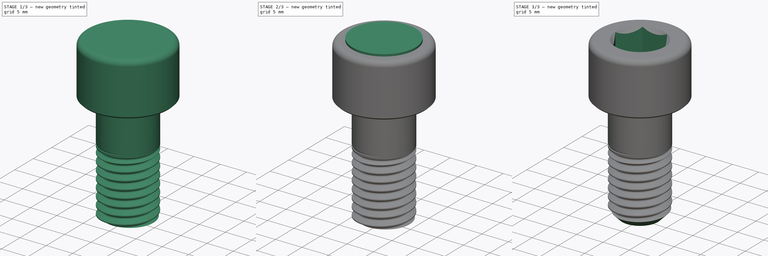
[diagram: build sequence overview — one tinted view per stage of 3, left to right]
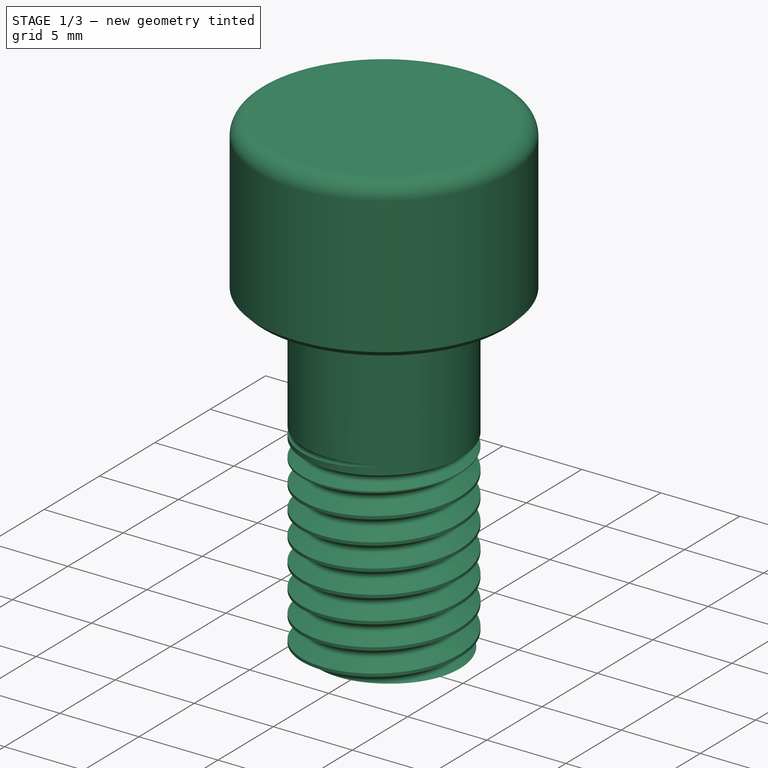
[diagram: stage 1 of 3 — iso view after this stage's code; geometry added in this stage tinted green]
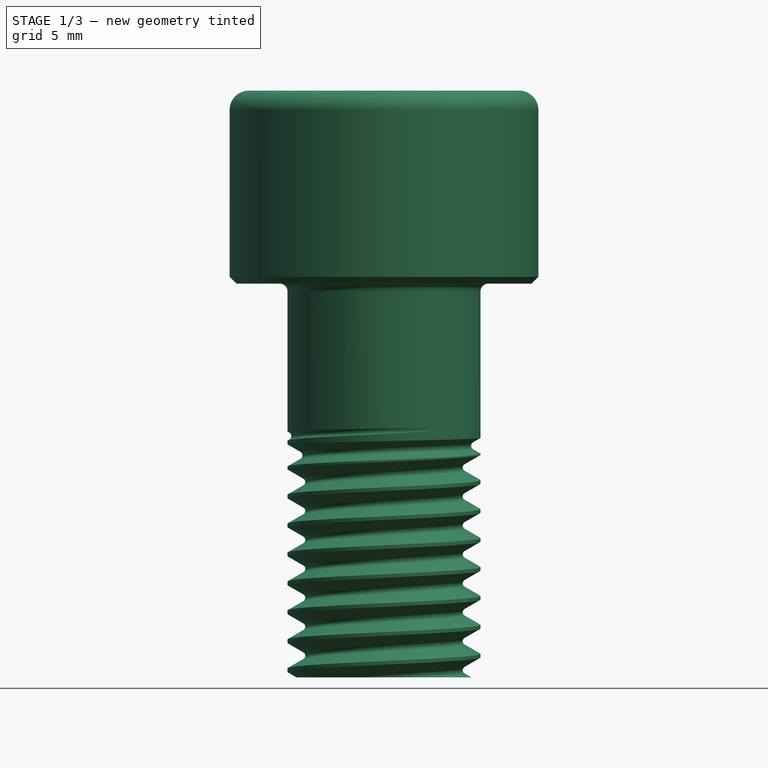
[diagram: stage 1 of 3 — front view after this stage's code; geometry added in this stage tinted green]
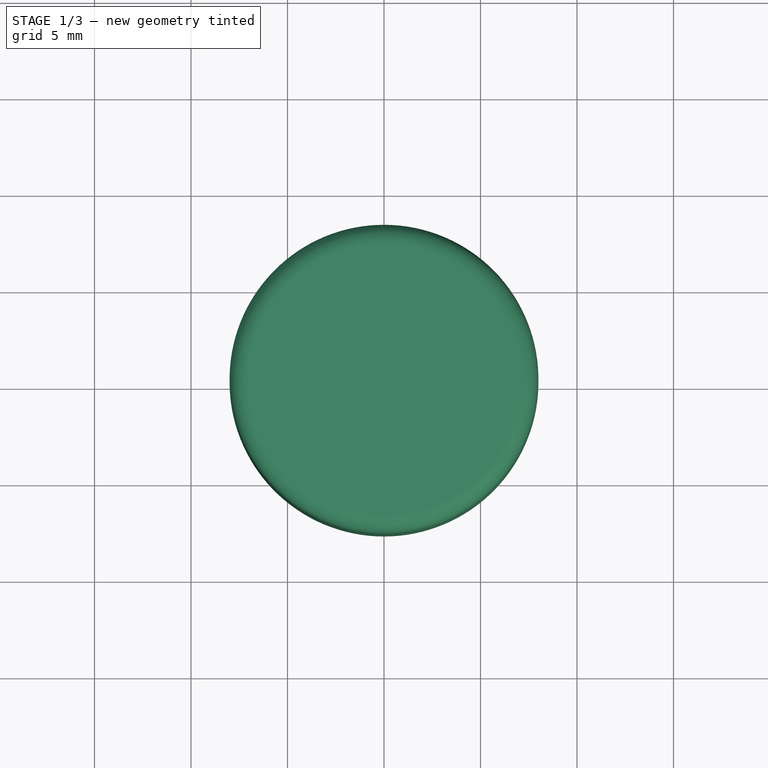
[diagram: stage 1 of 3 — top view after this stage's code; geometry added in this stage tinted green]
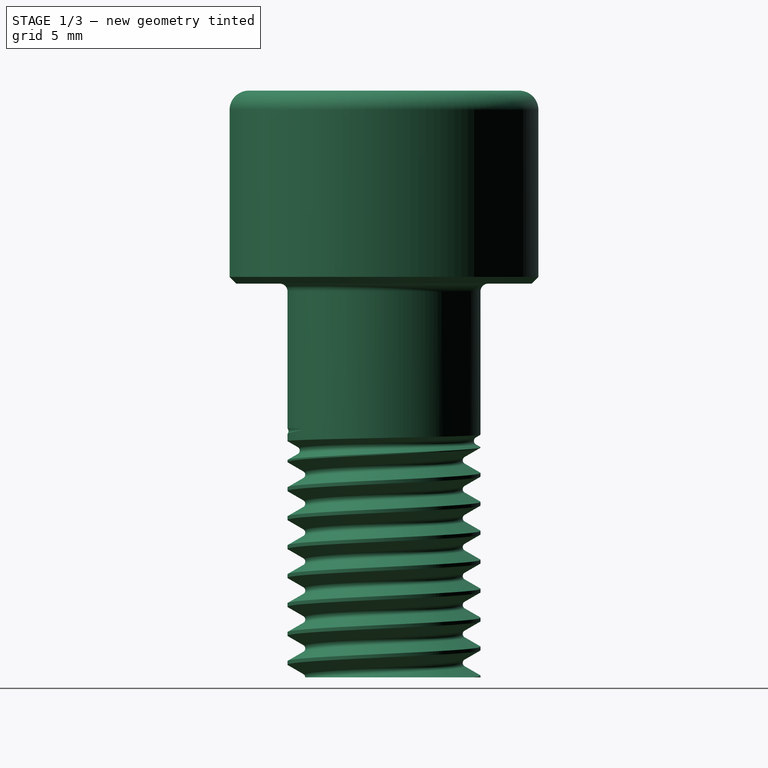
[diagram: stage 1 of 3 — right view after this stage's code; geometry added in this stage tinted green]
FCSTD DOCUMENT  (FreeCAD 0.18R16093 (Git))
Label: Vis M10x20 BTR
License: CreativeCommons Attribution
LicenseURL: http://creativecommons.org/licenses/by/4.0/
objects: Sketcher::SketchObject×7, Part::Helix×2, PartDesign::Revolution×2, PartDesign::Body×2, PartDesign::Groove×2, PartDesign::Pad×1, PartDesign::Pocket×1, Part::MultiFuse×1, PartDesign::ShapeBinder×1, PartDesign::SubtractivePipe×1, PartDesign::Boolean×1, Part::Feature×1
note: 29 computed .brp shape members not serialized (recipe doc carries the construction recipe); baked Part::Feature solids carry a one-line shape summary decoded from their .brp

FEATURE [Sketcher::SketchObject] Sketch  label="dessin cercle D=10mm plan XY"
  MapMode = 5
  Support = -> [XY_Plane]
  sketch-geometry (1):
    g0: Circle CenterX=0 CenterY=0 CenterZ=0 NormalX=0 NormalY=0 NormalZ=1 AngleXU=0 Radius=5
  constraints (2):
    c: Coincident(g0,g-1)
    c: Radius(g0) = 5
FEATURE [PartDesign::Pad] Pad  label="cylindre D=10mm x H=20mm"
  Length = 20
  Length2 = 100
  Profile = -> Sketch
  Type = 0
FEATURE [PartDesign::Body] Body001  label="empreinte six pans"
  Group = -> [Sketch005,Revolution001,Sketch006,Pocket]
  Origin = -> Origin001
  Tip = -> Pocket
FEATURE [Part::MultiFuse] Fusion  label="Fusion des hélices"
  Shapes = -> [Helix,Helix001]
FEATURE [PartDesign::ShapeBinder] ShapeBinder  label="reprise de fusion des hélices en forme liée"
  Support = -> [Fusion]
  TraceSupport = false
FEATURE [PartDesign::SubtractivePipe] SubtractivePipe  label="filetage complet"
  AuxilleryCurvelinear = true
  AuxillerySpineTangent = false
  BaseFeature = -> Pad
  Binormal = (0,0,0)
  Mode = 2
  Profile = -> Sketch002
  Spine = -> ShapeBinder
  SpineTangent = false
  Transformation = 0
  Transition = 0
FEATURE [PartDesign::Revolution] Revolution  label="tête brute"
  Angle = 360
  Axis = (0,-2e-16,1)
  Base = (0,0,0)
  BaseFeature = -> SubtractivePipe
  Profile = -> Sketch004
  ReferenceAxis = -> Sketch004 [V_Axis]
  Reversed = true
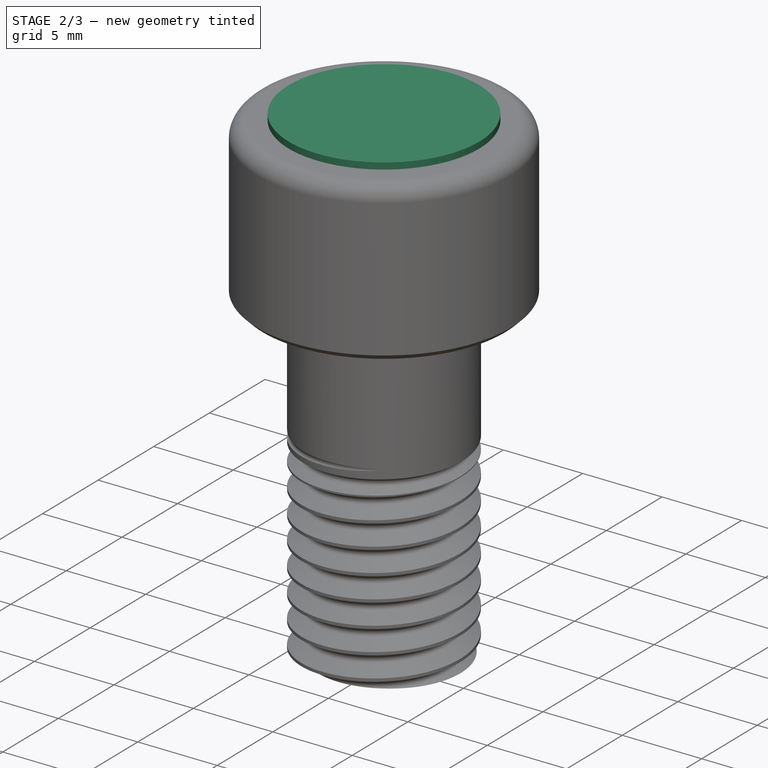
[diagram: stage 2 of 3 — iso view after this stage's code; geometry added in this stage tinted green]
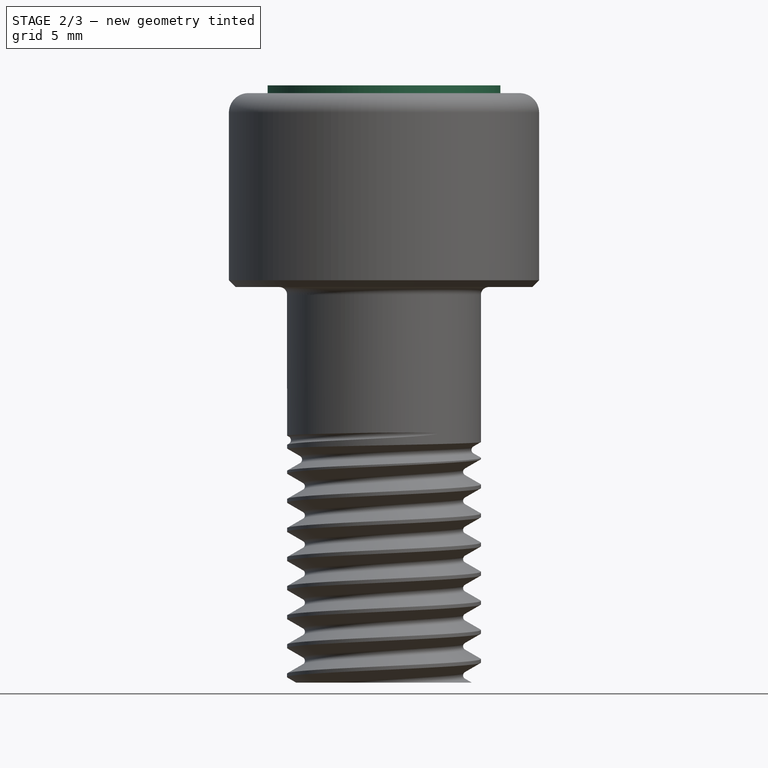
[diagram: stage 2 of 3 — front view after this stage's code; geometry added in this stage tinted green]
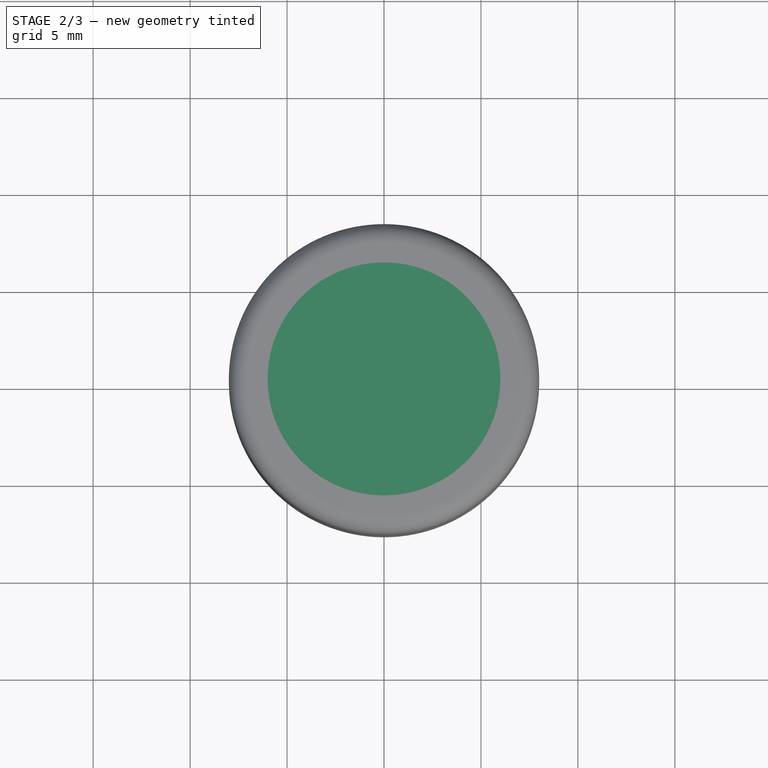
[diagram: stage 2 of 3 — top view after this stage's code; geometry added in this stage tinted green]
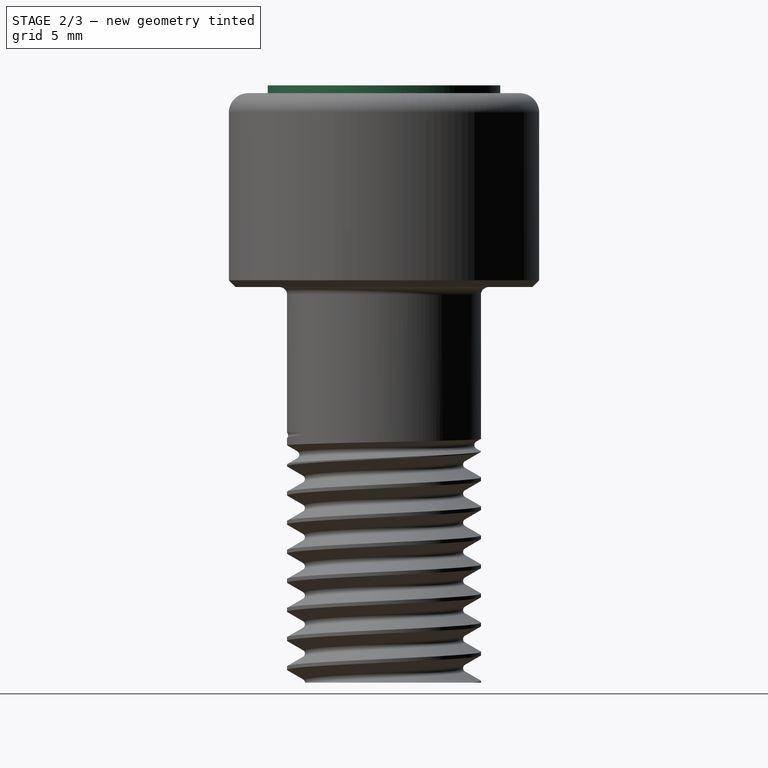
[diagram: stage 2 of 3 — right view after this stage's code; geometry added in this stage tinted green]
FEATURE [Part::Helix] Helix  label="Hélice pas 1,5mm r=5mm H=12mm 90° sur Z"
  Angle = 0
  AttacherType = Attacher::AttachEngine3D
  Height = 12
  LocalCoord = 0
  Pitch = 1.5
  Placement = pos=(0,0,0) rot=(0,0,1;1.5708rad)
  Radius = 5
  Style = 1
FEATURE [Part::Helix] Helix001  label="Hélice de sortie"
  Angle = 30
  AttacherType = Attacher::AttachEngine3D
  Height = 2
  LocalCoord = 0
  Pitch = 1
  Placement = pos=(0,0,12) rot=(0,0,1;1.5708rad)
  Radius = 5
  Style = 1
FEATURE [Sketcher::SketchObject] Sketch002  label="dessin filetage plan YZ"
  MapMode = 5
  Placement = pos=(0,0,0) rot=(0.57735,0.57735,0.57735;2.0944rad)
  Support = -> [YZ_Plane]
  sketch-geometry (7):
    g0: LineSegment [constr] StartX=5.16204 StartY=0 StartZ=0 EndX=3.863 EndY=-0.75 EndZ=0
    g1: LineSegment [constr] StartX=3.863 StartY=-0.75 StartZ=0 EndX=5.16204 EndY=-1.5 EndZ=0
    g2: LineSegment [constr] StartX=5.16204 StartY=-1.5 StartZ=0 EndX=5.16204 EndY=0 EndZ=0
    g3: LineSegment StartX=5.01 StartY=-0.0877792 StartZ=0 EndX=4.188 EndY=-0.562361 EndZ=0
    g4: LineSegment StartX=5.01 StartY=-1.41222 StartZ=0 EndX=4.188 EndY=-0.937639 EndZ=0
    g5: ArcOfCircle CenterX=4.29633 CenterY=-0.75 CenterZ=0 NormalX=0 NormalY=0 NormalZ=1 AngleXU=0 Radius=0.216667 StartAngle=2.0944 EndAngle=4.18879
    g6: LineSegment StartX=5.01 StartY=-0.0877792 StartZ=0 EndX=5.01 EndY=-1.41222 EndZ=0
  constraints (20):
    c: Coincident(g0,g1)
    c: Coincident(g1,g2)
    c: Coincident(g2,g0)
    c: Vertical(g2)
    c: Equal(g1,g0)
    c: DistanceY(g2,g2) = 1.5
    c: Angle(g1,g0) = 1.0472
    c: PointOnObject(g3,g0)
    c: PointOnObject(g4,g1)
    c: Tangent(g3,g5) = -1.5708
    c: PointOnObject(g3,g0)
    c: Tangent(g5,g4) = 1.5708
    c: PointOnObject(g4,g1)
    c: Coincident(g6,g3)
    c: Coincident(g6,g4)
    c: Vertical(g6)
    c: DistanceX(g4) = 4.188
    c: DistanceX(g4) = 5.01
    c: DistanceX(g0,g4) = 0.325
    c: PointOnObject(g0,g-1)
FEATURE [Sketcher::SketchObject] Sketch003  label="dessin chanfrein"
  MapMode = 5
  Placement = pos=(0,0,0) rot=(0.57735,0.57735,0.57735;2.0944rad)
  Support = -> [YZ_Plane]
  sketch-geometry (6):
    g0: LineSegment StartX=5 StartY=1.59354 StartZ=0 EndX=3.40646 EndY=0 EndZ=0
    g1: LineSegment StartX=3.40646 StartY=0 StartZ=0 EndX=5 EndY=0 EndZ=0
    g2: LineSegment StartX=5 StartY=0 StartZ=0 EndX=5 EndY=1.59354 EndZ=0
    g3: LineSegment StartX=4e-16 StartY=-4.88e-14 StartZ=0 EndX=4e-16 EndY=0.587219 EndZ=0
    g4: LineSegment StartX=4e-16 StartY=-4.88e-14 StartZ=0 EndX=2.80646 EndY=-4.88e-14 EndZ=0
    g5: ArcOfCircle CenterX=0 CenterY=-6.41278 CenterZ=0 NormalX=0 NormalY=0 NormalZ=1 AngleXU=0 Radius=7 StartAngle=1.15827 EndAngle=1.5708
  constraints (16):
    c: Coincident(g0,g1)
    c: Horizontal(g1)
    c: Coincident(g1,g2)
    c: Coincident(g2,g0)
    c: Vertical(g2)
    c: Angle(g1,g0) = 0.785398
    c: PointOnObject(g1,g-1)
    c: Coincident(g3,g-1)
    c: Coincident(g4,g3)
    c: Horizontal(g4)
    c: Vertical(g3)
    c: PointOnObject(g5,g-2)
    c: Coincident(g5,g3)
    c: Coincident(g5,g4)
    c: DistanceX(g4,g0) = 0.6
    c: Radius(g5) = 7
FEATURE [Sketcher::SketchObject] Sketch004  label="dessin profil tête"
  AttachmentOffset = pos=(0,0,0) rot=(0,1,0;1.5708rad)
  MapMode = 5
  Placement = pos=(0,0,0) rot=(0.57735,0.57735,0.57735;2.0944rad)
  Support = -> [XZ_Plane]
  sketch-geometry (8):
    g0: LineSegment StartX=0 StartY=20 StartZ=0 EndX=5 EndY=20 EndZ=0
    g1: ArcOfCircle CenterX=5.4 CenterY=20 CenterZ=0 NormalX=0 NormalY=0 NormalZ=1 AngleXU=0 Radius=0.4 StartAngle=1.5708 EndAngle=3.14159
    g2: LineSegment StartX=5.4 StartY=20.4 StartZ=0 EndX=7.65 EndY=20.4 EndZ=0
    g3: LineSegment StartX=7.65 StartY=20.4 StartZ=0 EndX=8 EndY=20.75 EndZ=0
    g4: LineSegment StartX=8 StartY=20.75 StartZ=0 EndX=8 EndY=29.4 EndZ=0
    g5: ArcOfCircle CenterX=7 CenterY=29.4 CenterZ=0 NormalX=0 NormalY=0 NormalZ=1 AngleXU=0 Radius=1 StartAngle=1.7e-15 EndAngle=1.5708
    g6: LineSegment StartX=7 StartY=30.4 StartZ=0 EndX=0 EndY=30.4 EndZ=0
    g7: LineSegment StartX=0 StartY=30.4 StartZ=0 EndX=0 EndY=20 EndZ=0
  constraints (21):
    c: PointOnObject(g0,g-2)
    c: Horizontal(g0)
    c: Perpendicular(g0,g1) = 4.71239
    c: Tangent(g1,g2) = 1.5708
    c: Coincident(g2,g3)
    c: Coincident(g3,g4)
    c: Vertical(g4)
    c: Tangent(g4,g5) = -1.5708
    c: Tangent(g5,g6) = -1.5708
    c: Coincident(g6,g7)
    c: Vertical(g7)
    c: Coincident(g7,g0)
    c: Horizontal(g6)
    c: Horizontal(g2)
    c: Radius(g1) = 0.4
    c: Angle(g3,g2) = 2.35619
    c: DistanceX(g3) = 8
    c: DistanceY(g2,g3) = 0.35
    c: DistanceY(g7,g7) = 10.4
    c: Radius(g5) = 1
    c: DistanceY(g0) = 20
FEATURE [Sketcher::SketchObject] Sketch005  label="dessin du fond conique"
  MapMode = 5
  Placement = pos=(0,0,0) rot=(1,0,0;1.5708rad)
  Support = -> [XZ_Plane001]
  sketch-geometry (5):
    g0: ArcOfCircle CenterX=0 CenterY=25.1 CenterZ=0 NormalX=0 NormalY=0 NormalZ=1 AngleXU=0 Radius=2.3 StartAngle=4.71239 EndAngle=4.9989
    g1: LineSegment StartX=0.65 StartY=22.8938 StartZ=0 EndX=6 EndY=25.9826 EndZ=0
    g2: LineSegment StartX=6 StartY=25.9826 StartZ=0 EndX=6 EndY=30.8 EndZ=0
    g3: LineSegment StartX=6 StartY=30.8 StartZ=0 EndX=0 EndY=30.8 EndZ=0
    g4: LineSegment StartX=-4e-16 StartY=30.8 StartZ=0 EndX=-4e-16 EndY=22.8 EndZ=0
  constraints (16):
    c: PointOnObject(g0,g-2)
    c: Coincident(g1,g0)
    c: Coincident(g2,g1)
    c: Vertical(g2)
    c: Coincident(g3,g2)
    c: PointOnObject(g3,g-2)
    c: Horizontal(g3)
    c: Coincident(g4,g3)
    c: Coincident(g4,g0)
    c: Vertical(g4)
    c: Radius(g0) = 2.3
    c: DistanceY(g0) = 22.8
    c: DistanceX(g0) = 0.65
    c: Angle(g1,g4) = 1.0472
    c: DistanceX(g3,g3) = 6
    c: DistanceY(g4,g4) = 8
FEATURE [PartDesign::Revolution] Revolution001  label="cylindre et fond conique"
  Angle = 360
  Axis = (0,2e-16,1)
  Base = (0,0,0)
  Placement = pos=(0,0,0) rot=(1,0,0;1.5708rad)
  Profile = -> Sketch005
  ReferenceAxis = -> Sketch005 [V_Axis]
  Reversed = true
FEATURE [Sketcher::SketchObject] Sketch007  label="dessin alésage supérieur de tête"
  MapMode = 5
  Placement = pos=(0,0,0) rot=(0.57735,0.57735,0.57735;2.0944rad)
  Support = -> [YZ_Plane]
  sketch-geometry (3):
    g0: ArcOfCircle CenterX=0 CenterY=34.2693 CenterZ=0 NormalX=0 NormalY=0 NormalZ=1 AngleXU=0 Radius=6.06931 StartAngle=4.71239 EndAngle=5.59191
    g1: LineSegment StartX=-1.1e-15 StartY=28.2 StartZ=0 EndX=-1.1e-15 EndY=30.4 EndZ=0
    g2: LineSegment StartX=-1.1e-15 StartY=30.4 StartZ=0 EndX=4.676 EndY=30.4 EndZ=0
  constraints (10):
    c: PointOnObject(g0,g-2)
    c: PointOnObject(g0,g-2)
    c: Coincident(g1,g0)
    c: Coincident(g2,g1)
    c: Coincident(g2,g0)
    c: Horizontal(g2)
    c: Vertical(g1)
    c: DistanceY(g0) = 28.2
    c: DistanceX(g2,g2) = 4.676
    c: DistanceY(g1) = 30.4
FEATURE [PartDesign::Groove] Groove  label="alésage supérieur de la tête"
  Angle = 360
  Axis = (-2e-16,3e-16,1)
  Base = (0,0,0)
  BaseFeature = -> Revolution
  Profile = -> Sketch007
  ReferenceAxis = -> Sketch007 [V_Axis]
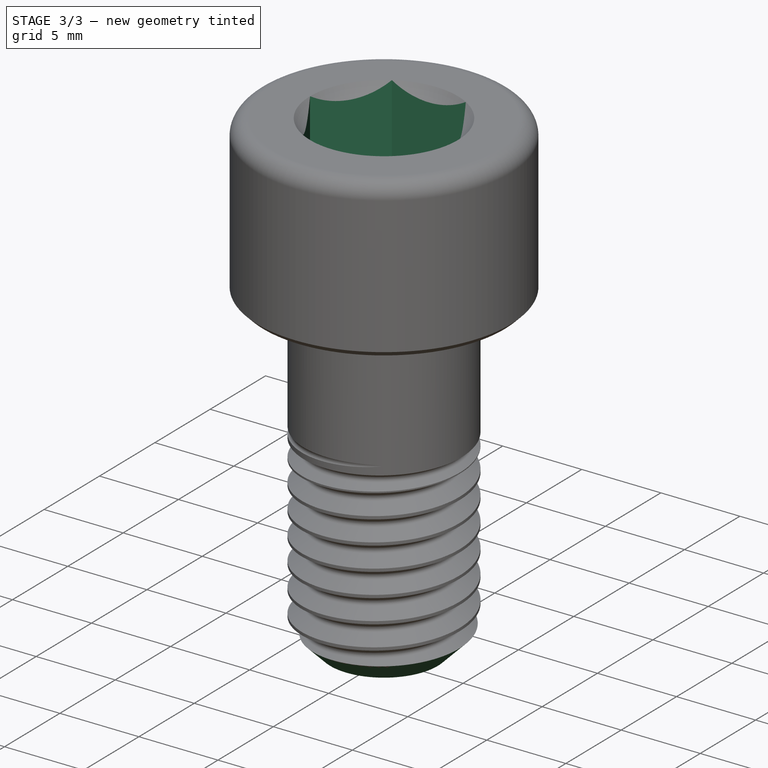
[diagram: stage 3 of 3 — iso view after this stage's code; geometry added in this stage tinted green]
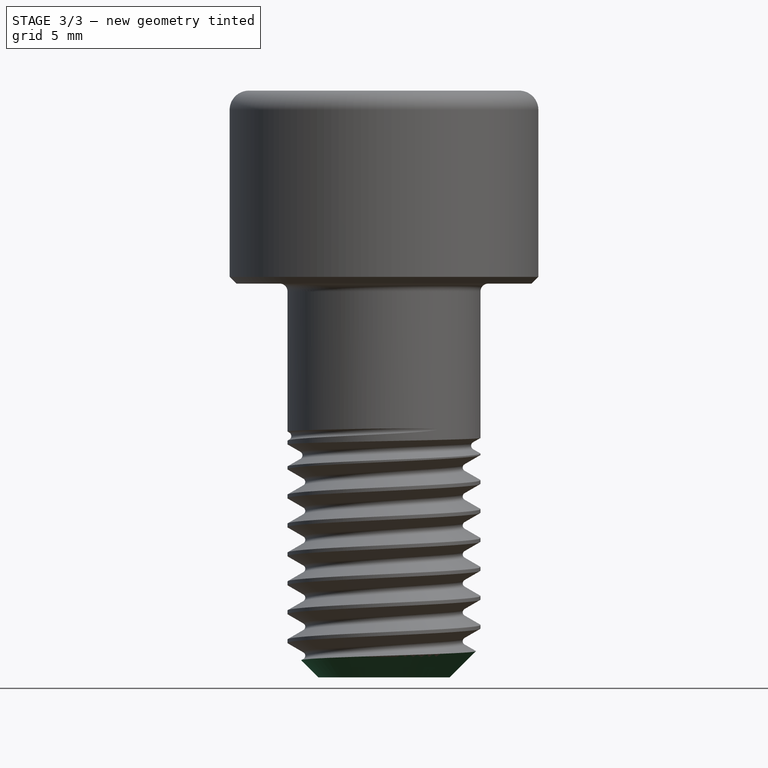
[diagram: stage 3 of 3 — front view after this stage's code; geometry added in this stage tinted green]
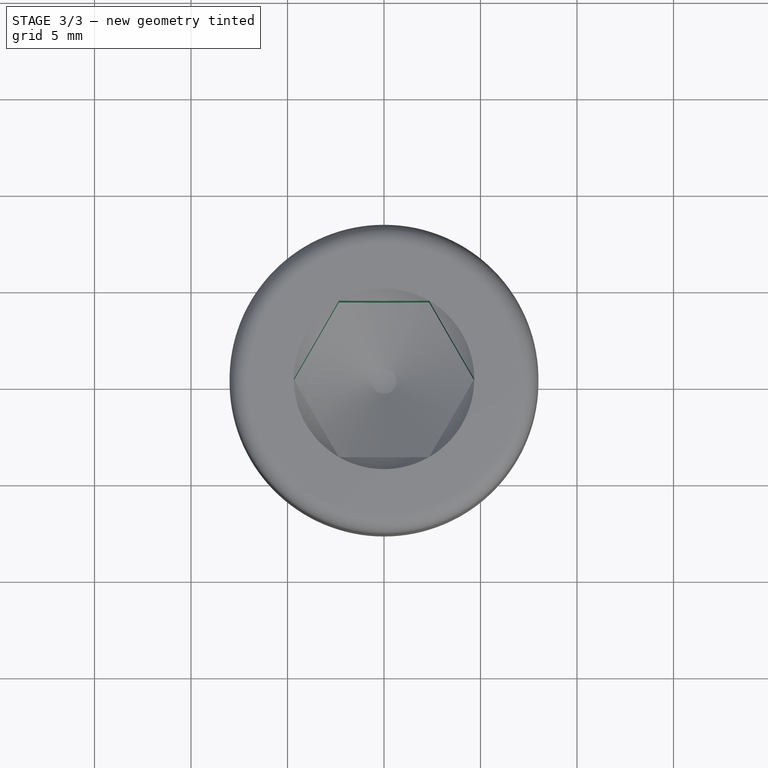
[diagram: stage 3 of 3 — top view after this stage's code; geometry added in this stage tinted green]
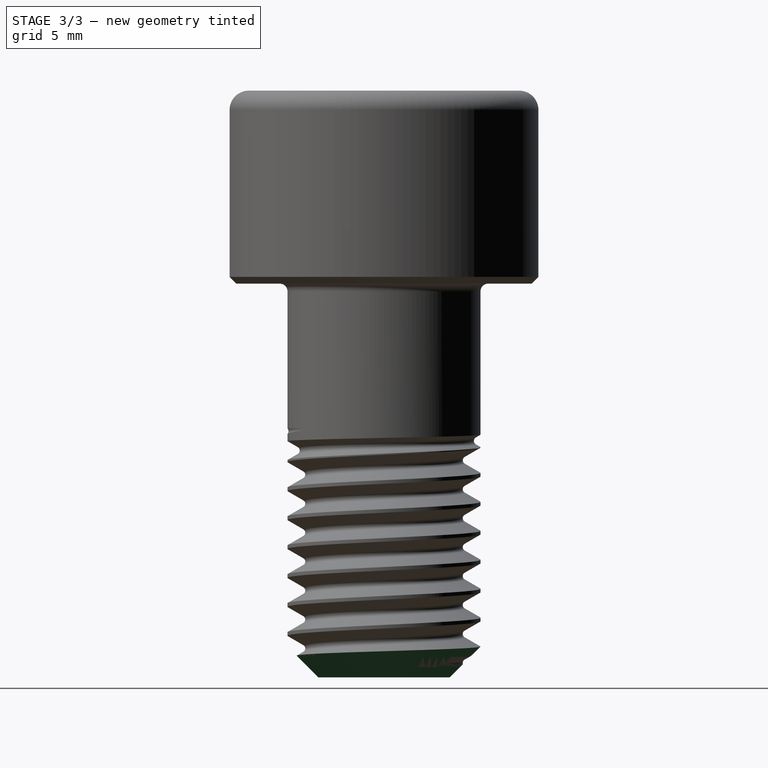
[diagram: stage 3 of 3 — right view after this stage's code; geometry added in this stage tinted green]
FEATURE [Sketcher::SketchObject] Sketch006  label="dessin des six pans"
  MapMode = 5
  Placement = pos=(0,2.04e-14,30.8) rot=(0,0,1;3.14159rad)
  Support = -> [Revolution001]
  sketch-geometry (11):
    g0: LineSegment StartX=-4.67654 StartY=0 StartZ=0 EndX=-2.33827 EndY=-4.05 EndZ=0
    g1: LineSegment StartX=-2.33827 StartY=-4.05 StartZ=0 EndX=2.33827 EndY=-4.05 EndZ=0
    g2: LineSegment StartX=2.33827 StartY=-4.05 StartZ=0 EndX=4.67654 EndY=0 EndZ=0
    g3: LineSegment StartX=4.67654 StartY=0 StartZ=0 EndX=2.33827 EndY=4.05 EndZ=0
    g4: LineSegment StartX=2.33827 StartY=4.05 StartZ=0 EndX=-2.33827 EndY=4.05 EndZ=0
    g5: LineSegment StartX=-2.33827 StartY=4.05 StartZ=0 EndX=-4.67654 EndY=0 EndZ=0
    g6: Circle [constr] CenterX=0 CenterY=0 CenterZ=0 NormalX=0 NormalY=0 NormalZ=1 AngleXU=0 Radius=4.67654
    g7: LineSegment StartX=-6.5 StartY=6.5 StartZ=0 EndX=6.5 EndY=6.5 EndZ=0
    g8: LineSegment StartX=6.5 StartY=6.5 StartZ=0 EndX=6.5 EndY=-6.5 EndZ=0
    g9: LineSegment StartX=6.5 StartY=-6.5 StartZ=0 EndX=-6.5 EndY=-6.5 EndZ=0
    g10: LineSegment StartX=-6.5 StartY=-6.5 StartZ=0 EndX=-6.5 EndY=6.5 EndZ=0
  constraints (27):
    c: Coincident(g0,g1)
    c: Coincident(g1,g2)
    c: Coincident(g2,g3)
    c: Coincident(g3,g4)
    c: Coincident(g4,g5)
    c: Coincident(g5,g0)
    c: Equal(g0, g1-g5) x5
    c: PointOnObject(g0,g6)
    c: PointOnObject(g1,g6)
    c: PointOnObject(g2,g6)
    c: PointOnObject(g3,g6)
    c: PointOnObject(g4,g6)
    c: PointOnObject(g5,g6)
    c: Coincident(g6,g-1)
    c: PointOnObject(g5,g-1)
    c: DistanceY(g1,g3) = 8.1
    c: Coincident(g7,g8)
    c: Coincident(g8,g9)
    c: Coincident(g9,g10)
    c: Coincident(g10,g7)
    c: Horizontal(g7)
    c: Horizontal(g9)
    c: Vertical(g8)
    c: Vertical(g10)
    c: Symmetric(g7,g9,g-1)
    c: Equal(g7,g8)
    c: DistanceX(g7,g7) = 13
FEATURE [PartDesign::Pocket] Pocket  label="forme hexagonale"
  BaseFeature = -> Revolution001
  Length = 5
  Length2 = 100
  Placement = pos=(0,0,0) rot=(1,0,0;1.5708rad)
  Profile = -> Sketch006
  Type = 1
FEATURE [PartDesign::Boolean] Boolean  label="soustraction booléenne de l'empreinte"
  BaseFeature = -> Groove
  Group = -> [Body001]
  Type = 1
FEATURE [PartDesign::Groove] Groove001  label="chanfrein et creux terminal"
  Angle = 360
  Axis = (-3e-16,3e-16,1)
  Base = (0,0,0)
  BaseFeature = -> Boolean
  Profile = -> Sketch003
  ReferenceAxis = -> Z_Axis
FEATURE [PartDesign::Body] Body  label="Vis M10 x 20 BTR"
  Group = -> [Sketch,Pad,Sketch002,Sketch003,Sketch004,ShapeBinder,SubtractivePipe,Revolution,Sketch007,Groove,Boolean,Groove001]
  Origin = -> Origin
  Tip = -> Groove001
FEATURE [Part::Feature] Slice_child0001  label="coupe"
  Placement = pos=(13.9545,13.8301,0) rot=(0,0,-1;1.0472rad)
  shape: bbox 17.32 x 13.84 x 30.4 mm, 89 faces (baked)
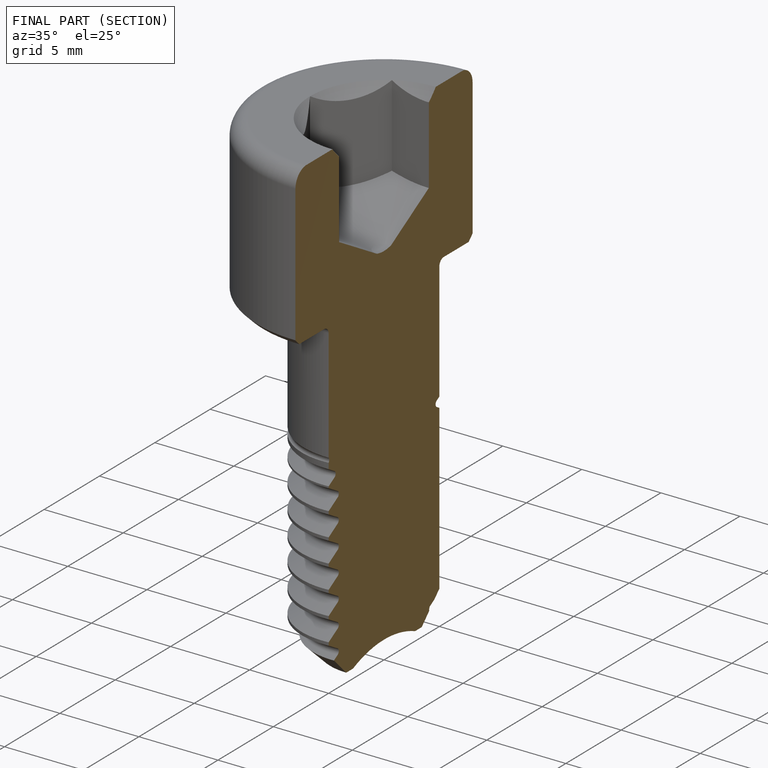
[diagram: finished part — half-section view (interior)]
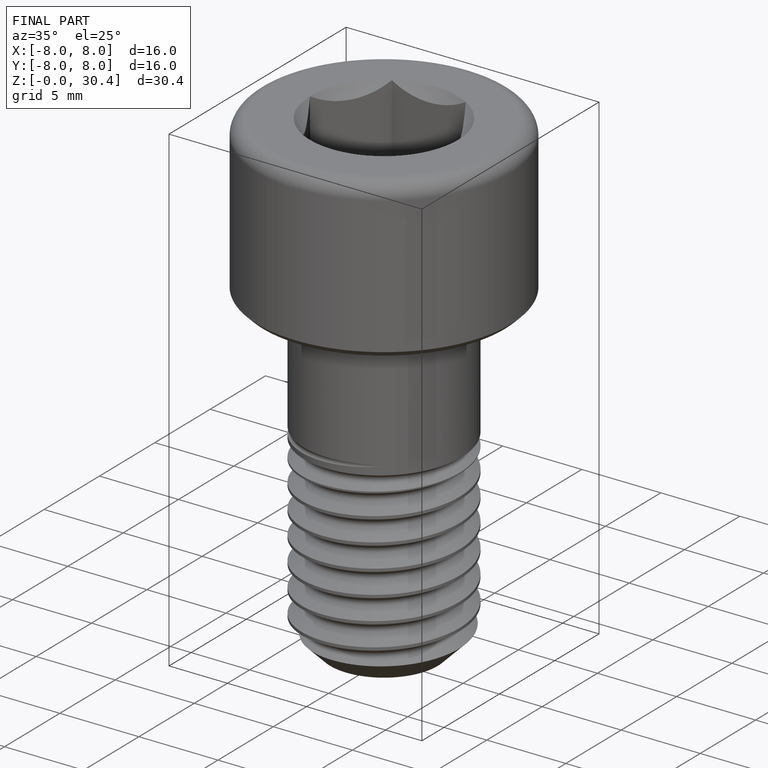
[diagram: finished part — iso view with bounding-box wireframe]
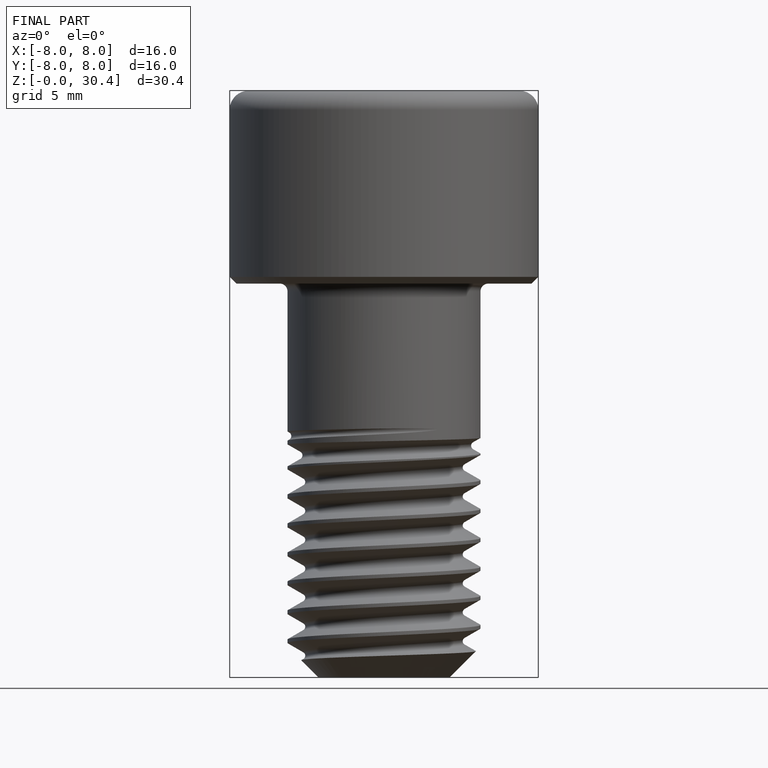
[diagram: finished part — front view with bounding-box wireframe]
